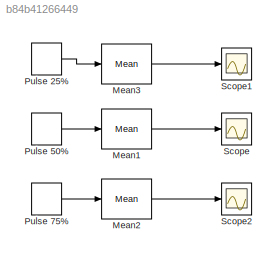
MODEL slx_b84b41266449
KIND model
BLOCK [Reference] Mean1  REF=powerlib_meascontrol/Measurements/Mean
  Freq = 60
  Ports = [1, 1]
  SourceBlock = powerlib_meascontrol/Measurements/Mean
  SourceType = Mean
  Ts = 0
  Vinit = 0
BLOCK [Reference] Mean2  REF=powerlib_meascontrol/Measurements/Mean
  Freq = 60
  Ports = [1, 1]
  SourceBlock = powerlib_meascontrol/Measurements/Mean
  SourceType = Mean
  Ts = 0
  Vinit = 0
BLOCK [Reference] Mean3  REF=powerlib_meascontrol/Measurements/Mean
  Freq = 60
  Ports = [1, 1]
  SourceBlock = powerlib_meascontrol/Measurements/Mean
  SourceType = Mean
  Ts = 0
  Vinit = 0
BLOCK [DiscretePulseGenerator] Pulse 25%
  Amplitude = 4
  Period = 4
  Ports = [0, 1]
  PulseType = Time based
  PulseWidth = 25
BLOCK [DiscretePulseGenerator] Pulse 50%
  Amplitude = 4
  Period = 4
  Ports = [0, 1]
  PulseType = Time based
  PulseWidth = 50
BLOCK [DiscretePulseGenerator] Pulse 75%
  Amplitude = 4
  Period = 4
  Ports = [0, 1]
  PulseType = Time based
  PulseWidth = 75
BLOCK [Scope] Scope
  DataFormat = StructureWithTime
  Floating = off
  NumInputPorts = 1
  Ports = [1]
  SampleTime = 0
  ShowLegends = off
BLOCK [Scope] Scope1
  DataFormat = StructureWithTime
  Floating = off
  NumInputPorts = 1
  Ports = [1]
  SampleTime = 0
  SaveName = ScopeData1
  ShowLegends = off
BLOCK [Scope] Scope2
  DataFormat = StructureWithTime
  Floating = off
  NumInputPorts = 1
  Ports = [1]
  SampleTime = 0
  SaveName = ScopeData2
  ShowLegends = off
LINE Mean1:1 -> Scope:1
LINE Mean2:1 -> Scope2:1
LINE Mean3:1 -> Scope1:1
LINE Pulse 25%:1 -> Mean3:1
LINE Pulse 50%:1 -> Mean1:1
LINE Pulse 75%:1 -> Mean2:1
